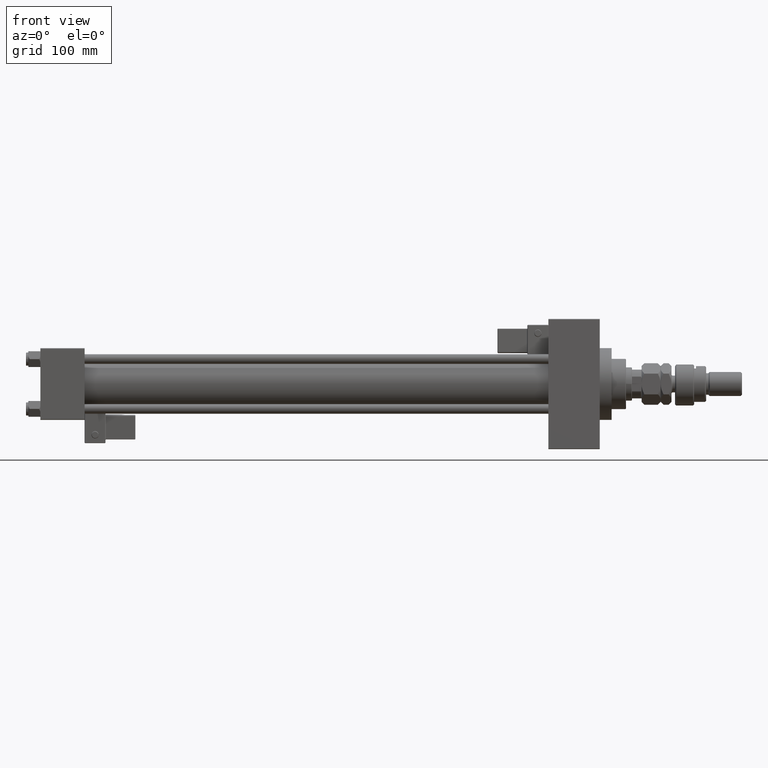
[diagram: clean part render]
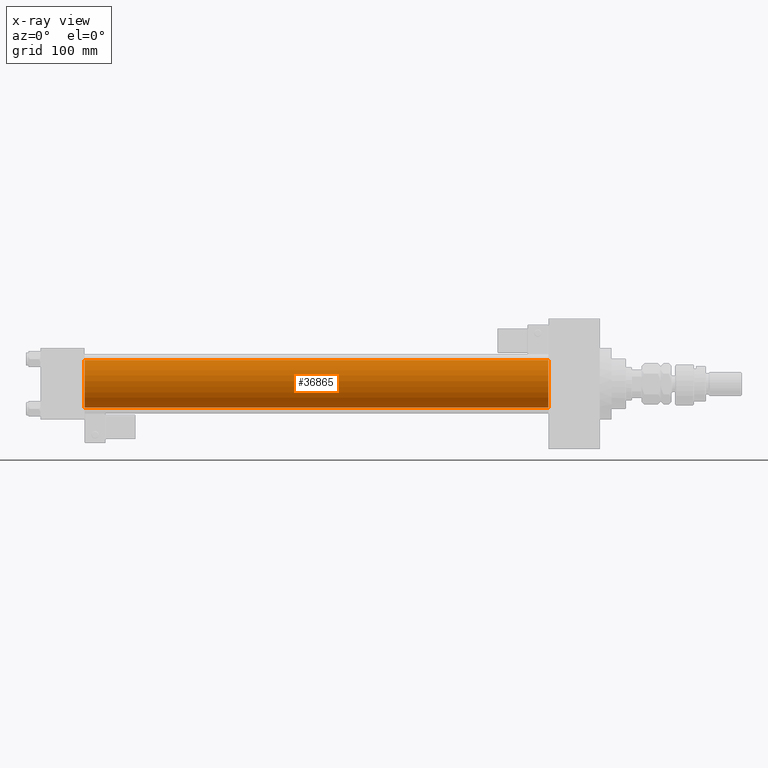
[diagram: x-ray — body ghosted, one internal face saturated and labeled with its STEP entity id]
A machine part, front view, then the same camera in x-ray: the body is ghosted and one INTERNAL B-rep face — a face not visible from any outside direction — is saturated and labeled: STEP entity #36865.
In plain terms, the highlighted cylindrical surface (edge-blend (fillet) strip) has radius 20 mm, axis along (-1, -0, -0).
Its self-contained STEP definition (entity closure, byte-faithful):
#3065 = DIRECTION ( 'NONE',  ( -1.000000000000000000, -0.000000000000000000, -0.000000000000000000 ) ) ;
#3168 = AXIS2_PLACEMENT_3D ( 'NONE', #25733, #40899, #21756 ) ;
#7639 = CARTESIAN_POINT ( 'NONE',  ( 425.0000000000000000, -1.527916156705046464E-16, -20.00000000000000000 ) ) ;
#8125 = CARTESIAN_POINT ( 'NONE',  ( 425.0000000000000000, -2.602085213965210642E-15, 0.000000000000000000 ) ) ;
#8202 = EDGE_CURVE ( 'NONE', #12893, #17441, #27864, .T. ) ;
#8256 = VECTOR ( 'NONE', #3065, 1000.000000000000000 ) ;
#8349 = CARTESIAN_POINT ( 'NONE',  ( 37.00000000000000000, -2.602085213965210642E-15, 0.000000000000000000 ) ) ;
#8686 = ORIENTED_EDGE ( 'NONE', *, *, #47897, .T. ) ;
#10580 = CIRCLE ( 'NONE', #40276, 20.00000000000000000 ) ;
#12483 = CIRCLE ( 'NONE', #3168, 20.00000000000000000 ) ;
#12651 = DIRECTION ( 'NONE',  ( 0.000000000000000000, 0.000000000000000000, 1.000000000000000000 ) ) ;
#12893 = VERTEX_POINT ( 'NONE', #26621 ) ;
#13708 = ORIENTED_EDGE ( 'NONE', *, *, #8202, .T. ) ;
#16115 = CYLINDRICAL_SURFACE ( 'NONE', #46161, 20.00000000000000000 ) ;
#17441 = VERTEX_POINT ( 'NONE', #46541 ) ;
#21756 = DIRECTION ( 'NONE',  ( 0.000000000000000000, 0.000000000000000000, -1.000000000000000000 ) ) ;
#23283 = CARTESIAN_POINT ( 'NONE',  ( 425.0000000000000000, -2.602085213965210642E-15, 20.00000000000000000 ) ) ;
#25733 = CARTESIAN_POINT ( 'NONE',  ( 425.0000000000000000, -2.602085213965210642E-15, 0.000000000000000000 ) ) ;
#26621 = CARTESIAN_POINT ( 'NONE',  ( 425.0000000000000000, -1.527916156705046464E-16, -20.00000000000000000 ) ) ;
#27864 = LINE ( 'NONE', #7639, #47728 ) ;
#28059 = DIRECTION ( 'NONE',  ( 1.000000000000000000, 0.000000000000000000, 0.000000000000000000 ) ) ;
#28867 = DIRECTION ( 'NONE',  ( -1.000000000000000000, -0.000000000000000000, -0.000000000000000000 ) ) ;
#29129 = FACE_OUTER_BOUND ( 'NONE', #38198, .T. ) ;
#29184 = ORIENTED_EDGE ( 'NONE', *, *, #39556, .F. ) ;
#31251 = LINE ( 'NONE', #23283, #8256 ) ;
#31407 = VERTEX_POINT ( 'NONE', #41730 ) ;
#36865 = ADVANCED_FACE ( 'NONE', ( #29129 ), #16115, .F. ) ;
#38198 = EDGE_LOOP ( 'NONE', ( #8686, #13708, #29184, #50156 ) ) ;
#39556 = EDGE_CURVE ( 'NONE', #46926, #17441, #10580, .T. ) ;
#40276 = AXIS2_PLACEMENT_3D ( 'NONE', #8349, #28059, #44275 ) ;
#40899 = DIRECTION ( 'NONE',  ( 1.000000000000000000, 0.000000000000000000, 0.000000000000000000 ) ) ;
#41730 = CARTESIAN_POINT ( 'NONE',  ( 425.0000000000000000, -2.602085213965210642E-15, 20.00000000000000000 ) ) ;
#44275 = DIRECTION ( 'NONE',  ( 0.000000000000000000, 0.000000000000000000, -1.000000000000000000 ) ) ;
#46161 = AXIS2_PLACEMENT_3D ( 'NONE', #8125, #28867, #12651 ) ;
#46541 = CARTESIAN_POINT ( 'NONE',  ( 37.00000000000000000, -1.527916156705046464E-16, -20.00000000000000000 ) ) ;
#46926 = VERTEX_POINT ( 'NONE', #51355 ) ;
#47728 = VECTOR ( 'NONE', #52309, 1000.000000000000000 ) ;
#47897 = EDGE_CURVE ( 'NONE', #31407, #12893, #12483, .T. ) ;
#50156 = ORIENTED_EDGE ( 'NONE', *, *, #50905, .F. ) ;
#50905 = EDGE_CURVE ( 'NONE', #31407, #46926, #31251, .T. ) ;
#51355 = CARTESIAN_POINT ( 'NONE',  ( 37.00000000000000000, -2.602085213965210642E-15, 20.00000000000000000 ) ) ;
#52309 = DIRECTION ( 'NONE',  ( -1.000000000000000000, -0.000000000000000000, -0.000000000000000000 ) ) ;